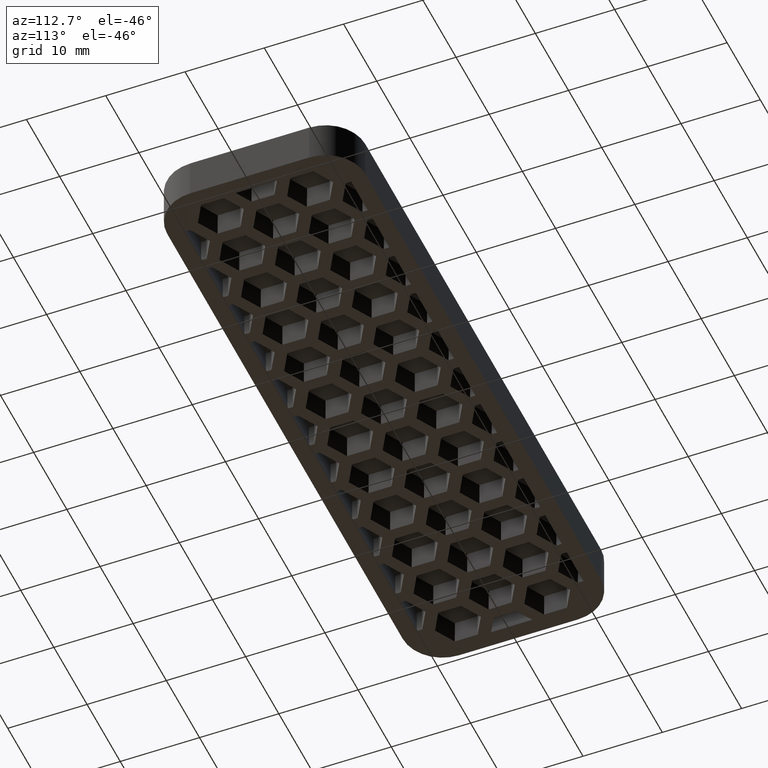
[diagram: clean part render]
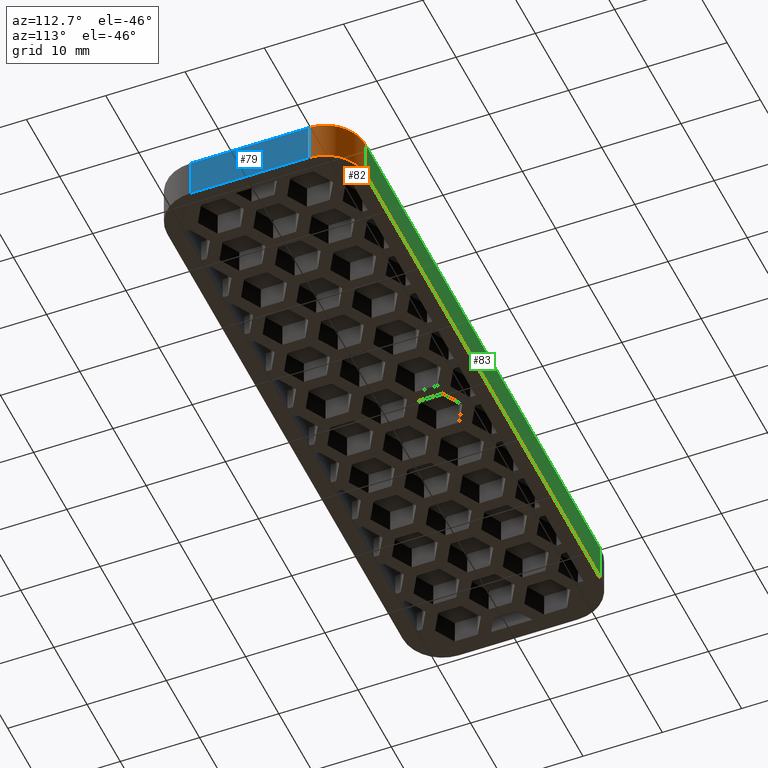
[diagram: same view with three faces highlighted in distinct colors, each labeled with its STEP entity id]
A machine part, auxiliary view with three faces highlighted in distinct colors.
Their STEP definitions:

[orange] entity #82 — the highlighted cylindrical surface (partial cylindrical patch) has radius 5 mm, axis along (-0, 0, 1).
#82 = ADVANCED_FACE( '', ( #590 ), #591, .T. );
#590 = FACE_OUTER_BOUND( '', #1526, .T. );
#591 = CYLINDRICAL_SURFACE( '', #1527, 5.00000000000000 );
#1526 = EDGE_LOOP( '', ( #2797, #2798, #2799, #2800 ) );
#1527 = AXIS2_PLACEMENT_3D( '', #2801, #2802, #2803 );
#2797 = ORIENTED_EDGE( '', *, *, #6199, .F. );
#2798 = ORIENTED_EDGE( '', *, *, #6259, .F. );
#2799 = ORIENTED_EDGE( '', *, *, #5887, .T. );
#2800 = ORIENTED_EDGE( '', *, *, #5923, .T. );
#2801 = CARTESIAN_POINT( '', ( 35.5000000000000, 7.50000000000012, 85.9625955756165 ) );
#2802 = DIRECTION( '', ( -1.60751816480227E-016, 1.81794180051289E-016, 1.00000000000000 ) );
#2803 = DIRECTION( '', ( 1.00000000000000, -2.77555756156289E-015, 1.60751816480227E-016 ) );
#5887 = EDGE_CURVE( '', #6994, #6995, #6996, .T. );
#5923 = EDGE_CURVE( '', #6995, #7061, #7064, .T. );
#6199 = EDGE_CURVE( '', #7612, #7061, #7614, .T. );
#6259 = EDGE_CURVE( '', #6994, #7612, #7732, .T. );
#6994 = VERTEX_POINT( '', #8833 );
#6995 = VERTEX_POINT( '', #8834 );
#6996 = CIRCLE( '', #8835, 5.00000000000000 );
#7061 = VERTEX_POINT( '', #8927 );
#7064 = LINE( '', #8931, #8932 );
#7612 = VERTEX_POINT( '', #9753 );
#7614 = CIRCLE( '', #9756, 5.00000000000000 );
#7732 = LINE( '', #9931, #9932 );
#8833 = CARTESIAN_POINT( '', ( 35.5000000000000, 12.5000000000000, 4.99999999999999 ) );
#8834 = CARTESIAN_POINT( '', ( 40.5000000000000, 7.50000000000012, 4.99999999999999 ) );
#8835 = AXIS2_PLACEMENT_3D( '', #11719, #11720, #11721 );
#8927 = CARTESIAN_POINT( '', ( 40.5000000000000, 7.50000000000012, -1.43370151904979E-014 ) );
#8931 = CARTESIAN_POINT( '', ( 40.5000000000000, 7.50000000000012, 85.9625955756165 ) );
#8932 = VECTOR( '', #11771, 1000.00000000000 );
#9753 = CARTESIAN_POINT( '', ( 35.5000000000000, 12.5000000000000, -1.46431667789534E-014 ) );
#9756 = AXIS2_PLACEMENT_3D( '', #12049, #12050, #12051 );
#9931 = CARTESIAN_POINT( '', ( 35.5000000000000, 12.5000000000001, 85.9625955756165 ) );
#9932 = VECTOR( '', #12115, 1000.00000000000 );
#11719 = CARTESIAN_POINT( '', ( 35.5000000000000, 7.50000000000011, 4.99999999999999 ) );
#11720 = DIRECTION( '', ( 0.000000000000000, -6.12303176911189E-017, -1.00000000000000 ) );
#11721 = DIRECTION( '', ( 0.000000000000000, 1.00000000000000, -6.12303176911189E-017 ) );
#11771 = DIRECTION( '', ( 1.60751816480227E-016, -1.81794180051289E-016, -1.00000000000000 ) );
#12049 = CARTESIAN_POINT( '', ( 35.5000000000000, 7.50000000000011, -1.43370151904979E-014 ) );
#12050 = DIRECTION( '', ( 0.000000000000000, -6.12303176911189E-017, -1.00000000000000 ) );
#12051 = DIRECTION( '', ( 0.000000000000000, 1.00000000000000, -6.12303176911189E-017 ) );
#12115 = DIRECTION( '', ( 1.60751816480227E-016, -1.81794180051289E-016, -1.00000000000000 ) );

[blue] entity #79 — the highlighted planar face has unit normal (1, 0, 0).
#79 = ADVANCED_FACE( '', ( #525 ), #526, .T. );
#525 = FACE_OUTER_BOUND( '', #1461, .T. );
#526 = PLANE( '', #1462 );
#1461 = EDGE_LOOP( '', ( #2444, #2445, #2446, #2447 ) );
#1462 = AXIS2_PLACEMENT_3D( '', #2448, #2449, #2450 );
#2444 = ORIENTED_EDGE( '', *, *, #5922, .F. );
#2445 = ORIENTED_EDGE( '', *, *, #5923, .F. );
#2446 = ORIENTED_EDGE( '', *, *, #5894, .T. );
#2447 = ORIENTED_EDGE( '', *, *, #5924, .T. );
#2448 = CARTESIAN_POINT( '', ( 40.5000000000000, 7.50000000000012, 85.9625955756165 ) );
#2449 = DIRECTION( '', ( 1.00000000000000, 7.98703790013520E-031, 1.60751816480227E-016 ) );
#2450 = DIRECTION( '', ( 7.69480045344742E-031, -1.00000000000000, 1.81794180051289E-016 ) );
#5894 = EDGE_CURVE( '', #6995, #7007, #7009, .T. );
#5922 = EDGE_CURVE( '', #7061, #7062, #7063, .T. );
#5923 = EDGE_CURVE( '', #6995, #7061, #7064, .T. );
#5924 = EDGE_CURVE( '', #7007, #7062, #7065, .T. );
#6995 = VERTEX_POINT( '', #8834 );
#7007 = VERTEX_POINT( '', #8849 );
#7009 = LINE( '', #8851, #8852 );
#7061 = VERTEX_POINT( '', #8927 );
#7062 = VERTEX_POINT( '', #8928 );
#7063 = LINE( '', #8929, #8930 );
#7064 = LINE( '', #8931, #8932 );
#7065 = LINE( '', #8933, #8934 );
#8834 = CARTESIAN_POINT( '', ( 40.5000000000000, 7.50000000000012, 4.99999999999999 ) );
#8849 = CARTESIAN_POINT( '', ( 40.5000000000000, -7.49999999999992, 4.99999999999999 ) );
#8851 = CARTESIAN_POINT( '', ( 40.5000000000000, 3.06151588455584E-016, 4.99999999999999 ) );
#8852 = VECTOR( '', #11734, 1000.00000000000 );
#8927 = CARTESIAN_POINT( '', ( 40.5000000000000, 7.50000000000012, -1.43370151904979E-014 ) );
#8928 = CARTESIAN_POINT( '', ( 40.5000000000000, -7.49999999999992, -1.34185604251311E-014 ) );
#8929 = CARTESIAN_POINT( '', ( 40.5000000000000, -1.07105026715850E-029, -1.38777878078145E-014 ) );
#8930 = VECTOR( '', #11770, 1000.00000000000 );
#8931 = CARTESIAN_POINT( '', ( 40.5000000000000, 7.50000000000012, 85.9625955756165 ) );
#8932 = VECTOR( '', #11771, 1000.00000000000 );
#8933 = CARTESIAN_POINT( '', ( 40.5000000000000, -7.49999999999989, 85.9625955756165 ) );
#8934 = VECTOR( '', #11772, 1000.00000000000 );
#11734 = DIRECTION( '', ( 7.88860905221012E-031, -1.00000000000000, 6.12303176911189E-017 ) );
#11770 = DIRECTION( '', ( 7.88860905221012E-031, -1.00000000000000, 6.12303176911189E-017 ) );
#11771 = DIRECTION( '', ( 1.60751816480227E-016, -1.81794180051289E-016, -1.00000000000000 ) );
#11772 = DIRECTION( '', ( 1.60751816480227E-016, -1.81794180051289E-016, -1.00000000000000 ) );

[green] entity #83 — the highlighted planar face has unit normal (0, -1, 0).
#83 = ADVANCED_FACE( '', ( #592 ), #593, .F. );
#592 = FACE_OUTER_BOUND( '', #1528, .T. );
#593 = PLANE( '', #1529 );
#1528 = EDGE_LOOP( '', ( #2804, #2805, #2806, #2807 ) );
#1529 = AXIS2_PLACEMENT_3D( '', #2808, #2809, #2810 );
#2804 = ORIENTED_EDGE( '', *, *, #5888, .T. );
#2805 = ORIENTED_EDGE( '', *, *, #6259, .T. );
#2806 = ORIENTED_EDGE( '', *, *, #6198, .F. );
#2807 = ORIENTED_EDGE( '', *, *, #6260, .F. );
#2808 = CARTESIAN_POINT( '', ( -53.0000000000000, 12.5000000000000, -1.46431667789534E-014 ) );
#2809 = DIRECTION( '', ( 0.000000000000000, -1.00000000000000, 6.12303176911189E-017 ) );
#2810 = DIRECTION( '', ( -1.00000000000000, 0.000000000000000, 0.000000000000000 ) );
#5888 = EDGE_CURVE( '', #6997, #6994, #6998, .T. );
#6198 = EDGE_CURVE( '', #7611, #7612, #7613, .T. );
#6259 = EDGE_CURVE( '', #6994, #7612, #7732, .T. );
#6260 = EDGE_CURVE( '', #6997, #7611, #7733, .T. );
#6994 = VERTEX_POINT( '', #8833 );
#6997 = VERTEX_POINT( '', #8836 );
#6998 = LINE( '', #8837, #8838 );
#7611 = VERTEX_POINT( '', #9752 );
#7612 = VERTEX_POINT( '', #9753 );
#7613 = LINE( '', #9754, #9755 );
#7732 = LINE( '', #9931, #9932 );
#7733 = LINE( '', #9933, #9934 );
#8833 = CARTESIAN_POINT( '', ( 35.5000000000000, 12.5000000000000, 4.99999999999999 ) );
#8836 = CARTESIAN_POINT( '', ( -35.5000000000000, 12.5000000000000, 4.99999999999999 ) );
#8837 = CARTESIAN_POINT( '', ( -53.0000000000000, 12.5000000000000, 4.99999999999999 ) );
#8838 = VECTOR( '', #11722, 1000.00000000000 );
#9752 = CARTESIAN_POINT( '', ( -35.5000000000000, 12.5000000000000, -1.46431667789534E-014 ) );
#9753 = CARTESIAN_POINT( '', ( 35.5000000000000, 12.5000000000000, -1.46431667789534E-014 ) );
#9754 = CARTESIAN_POINT( '', ( -53.0000000000000, 12.5000000000000, -1.46431667789534E-014 ) );
#9755 = VECTOR( '', #12048, 1000.00000000000 );
#9931 = CARTESIAN_POINT( '', ( 35.5000000000000, 12.5000000000001, 85.9625955756165 ) );
#9932 = VECTOR( '', #12115, 1000.00000000000 );
#9933 = CARTESIAN_POINT( '', ( -35.5000000000000, 12.5000000000000, 99.3873957580092 ) );
#9934 = VECTOR( '', #12116, 1000.00000000000 );
#11722 = DIRECTION( '', ( 1.00000000000000, 0.000000000000000, 0.000000000000000 ) );
#12048 = DIRECTION( '', ( 1.00000000000000, 0.000000000000000, 0.000000000000000 ) );
#12115 = DIRECTION( '', ( 1.60751816480227E-016, -1.81794180051289E-016, -1.00000000000000 ) );
#12116 = DIRECTION( '', ( 1.60751816480226E-016, -1.81794180051289E-016, -1.00000000000000 ) );